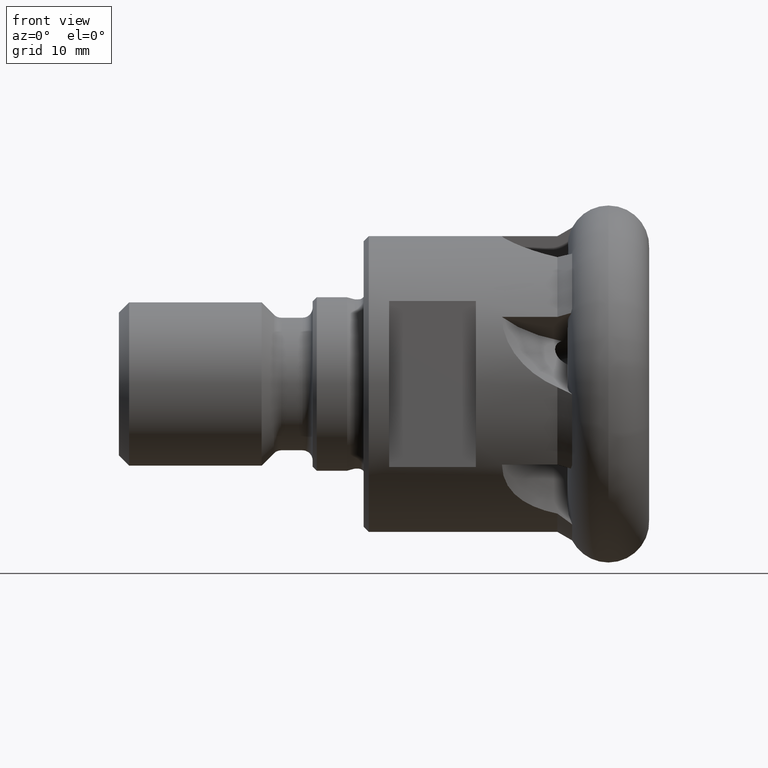
[diagram: clean part render]
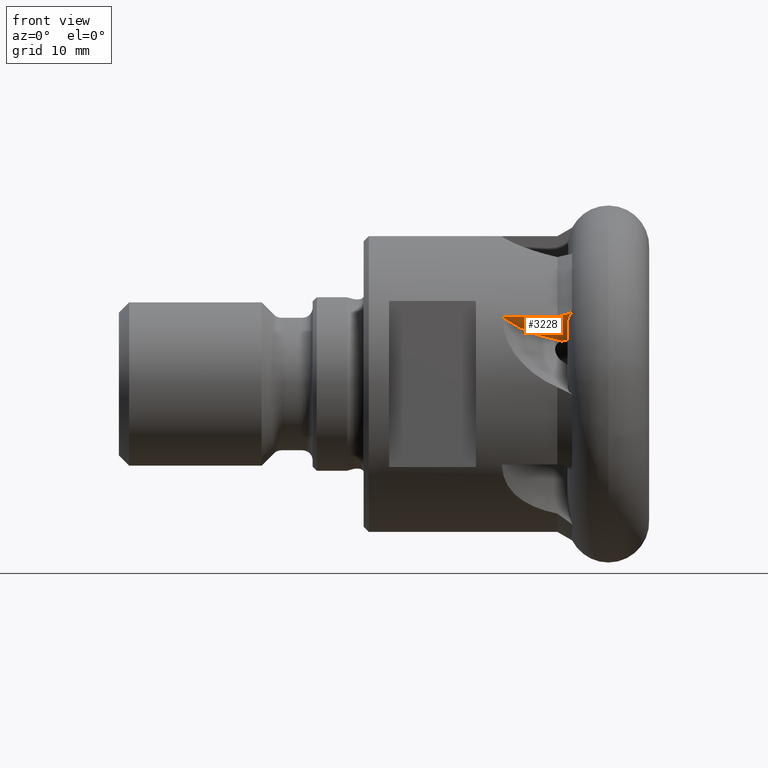
[diagram: same view with one face highlighted and labeled with its STEP entity id]
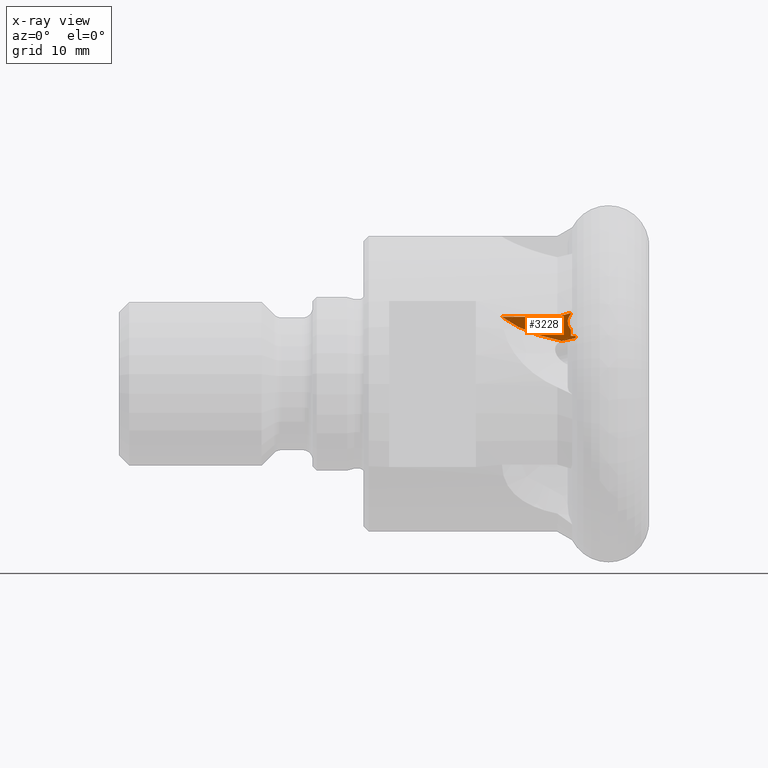
[diagram: x-ray of the same camera — body ghosted, the highlighted face saturated]
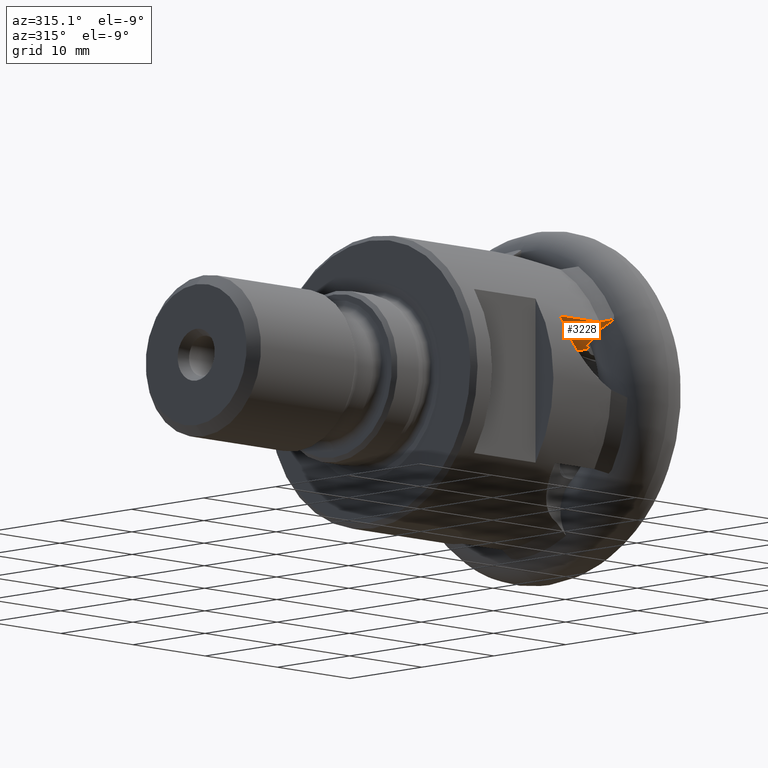
[diagram: same view with one face highlighted and labeled with its STEP entity id]
A machine part, front view. The second image highlights one B-rep face of the part: STEP entity #3228.
The next image is the same camera in x-ray: the body ghosted, the highlighted face saturated — about 0% of this face is hidden behind the body in this view.
A second angle (auxiliary view) of the same face is appended — the face is thin or edge-on in the first view.
In plain terms, the highlighted planar face has unit normal (0, 0.4962, 0.8682).
Its self-contained STEP definition (entity closure, byte-faithful):
#101 = VERTEX_POINT ( 'NONE', #1814 ) ;
#115 = CARTESIAN_POINT ( 'NONE',  ( -7.077664714744979200, -11.58530482869359300, 5.815280292771054100 ) ) ;
#249 = VECTOR ( 'NONE', #1309, 1000.000000000000000 ) ;
#416 = EDGE_LOOP ( 'NONE', ( #1455, #2642, #1391, #3298, #7350, #6049, #5179, #2275, #4529 ) ) ;
#428 = EDGE_CURVE ( 'NONE', #8034, #101, #2327, .T. ) ;
#470 = LINE ( 'NONE', #6290, #3826 ) ;
#661 = CARTESIAN_POINT ( 'NONE',  ( -6.312000000000001200, -9.642300743439967900, 4.704761967105604000 ) ) ;
#982 = VERTEX_POINT ( 'NONE', #4386 ) ;
#1079 = CARTESIAN_POINT ( 'NONE',  ( -6.645890137539253400, -9.204773901597953100, 4.454694775006692500 ) ) ;
#1309 = DIRECTION ( 'NONE',  ( -1.000000000000000000, 0.0000000000000000000, 0.0000000000000000000 ) ) ;
#1356 = CARTESIAN_POINT ( 'NONE',  ( -7.104973918217275800, -12.28642943771577700, 6.216006020937766300 ) ) ;
#1378 = B_SPLINE_CURVE_WITH_KNOTS ( 'NONE', 3,
 ( #6879, #7527, #3066, #115, #3172, #1356, #7650, #2567, #7020, #2487 ),
 .UNSPECIFIED., .F., .F.,
 ( 4, 2, 2, 2, 4 ),
 ( 0.0009457121876681753000, 0.001749714657031297700, 0.002553717126394419700, 0.003357719595757542200, 0.004161722065120664600 ),
 .UNSPECIFIED. ) ;
#1391 = ORIENTED_EDGE ( 'NONE', *, *, #2331, .T. ) ;
#1397 = CARTESIAN_POINT ( 'NONE',  ( -6.783404308883628900, -13.70344133600724700, 7.025895044168128000 ) ) ;
#1455 = ORIENTED_EDGE ( 'NONE', *, *, #4496, .T. ) ;
#1510 = AXIS2_PLACEMENT_3D ( 'NONE', #2737, #7182, #2118 ) ;
#1594 = CARTESIAN_POINT ( 'NONE',  ( -7.672490728010905600, -8.769186342276771700, 4.205735974184139400 ) ) ;
#1612 = CIRCLE ( 'NONE', #4898, 12.08948987642473400 ) ;
#1814 = CARTESIAN_POINT ( 'NONE',  ( -6.312000000000002100, -9.275178653488451300, 4.494934405886378500 ) ) ;
#1967 = EDGE_CURVE ( 'NONE', #4568, #2224, #1378, .T. ) ;
#2091 = CARTESIAN_POINT ( 'NONE',  ( -6.312000000000002100, -9.069710942337794200, 4.377499934030620200 ) ) ;
#2118 = DIRECTION ( 'NONE',  ( 0.0000000000000000000, -0.8681988144891401600, 0.4962165036752120800 ) ) ;
#2129 = CARTESIAN_POINT ( 'NONE',  ( -7.666994397232719500, -13.14326176407312600, 6.705726041427682000 ) ) ;
#2194 = VECTOR ( 'NONE', #3877, 1000.000000000000000 ) ;
#2224 = VERTEX_POINT ( 'NONE', #3467 ) ;
#2275 = ORIENTED_EDGE ( 'NONE', *, *, #6850, .F. ) ;
#2327 =( BOUNDED_CURVE ( )  B_SPLINE_CURVE ( 3, ( #3025, #2973, #1079, #5536 ),
 .UNSPECIFIED., .F., .F. ) 
 B_SPLINE_CURVE_WITH_KNOTS ( ( 4, 4 ),
 ( 5.693759523705598000, 6.009255545055557600 ),
 .UNSPECIFIED. ) 
 CURVE ( )  GEOMETRIC_REPRESENTATION_ITEM ( )  RATIONAL_B_SPLINE_CURVE ( ( 1.000000000000000000, 0.9917223750894518200, 0.9917223750894518200, 1.000000000000000000 ) ) 
 REPRESENTATION_ITEM ( '' )  );
#2331 = EDGE_CURVE ( 'NONE', #2224, #982, #470, .T. ) ;
#2405 = CARTESIAN_POINT ( 'NONE',  ( -6.783404308883629800, -9.642300743439969700, 4.704761967105604000 ) ) ;
#2487 = CARTESIAN_POINT ( 'NONE',  ( -6.783404308883628000, -13.41843757786564800, 6.863001976314154500 ) ) ;
#2545 = CARTESIAN_POINT ( 'NONE',  ( 0.0000000000000000000, -12.92155623944322000, 6.579010894572679300 ) ) ;
#2567 = CARTESIAN_POINT ( 'NONE',  ( -6.970225051594766800, -12.97712910727345700, 6.610773405317584800 ) ) ;
#2642 = ORIENTED_EDGE ( 'NONE', *, *, #1967, .T. ) ;
#2737 = CARTESIAN_POINT ( 'NONE',  ( -6.016304989521160000, -15.86872670308163800, 8.263457589034045400 ) ) ;
#2861 = EDGE_CURVE ( 'NONE', #5644, #5004, #7526, .T. ) ;
#2973 = CARTESIAN_POINT ( 'NONE',  ( -7.103172256737238400, -9.034702006505327200, 4.357490678723818800 ) ) ;
#2989 = VECTOR ( 'NONE', #3292, 1000.000000000000100 ) ;
#3016 = EDGE_CURVE ( 'NONE', #6245, #3831, #6338, .T. ) ;
#3025 = CARTESIAN_POINT ( 'NONE',  ( -7.672490728010905600, -8.769186342276771700, 4.205735974184139400 ) ) ;
#3066 = CARTESIAN_POINT ( 'NONE',  ( -6.970320713683623400, -11.12828999091050600, 5.554074793353436200 ) ) ;
#3172 = CARTESIAN_POINT ( 'NONE',  ( -7.104812254944403300, -11.81690740790411100, 5.947652072345097600 ) ) ;
#3228 = ADVANCED_FACE ( 'NONE', ( #4723 ), #5962, .F. ) ;
#3292 = DIRECTION ( 'NONE',  ( 2.727680699280051000E-016, -0.8681988144891400500, 0.4962165036752120300 ) ) ;
#3298 = ORIENTED_EDGE ( 'NONE', *, *, #8032, .T. ) ;
#3460 = LINE ( 'NONE', #2091, #7582 ) ;
#3467 = CARTESIAN_POINT ( 'NONE',  ( -6.783404308883628000, -13.41843757786564800, 6.863001976314154500 ) ) ;
#3797 = CARTESIAN_POINT ( 'NONE',  ( -8.108779725843955800, -12.92155623944322200, 6.579010894572679300 ) ) ;
#3826 = VECTOR ( 'NONE', #4298, 1000.000000000000100 ) ;
#3831 = VERTEX_POINT ( 'NONE', #2405 ) ;
#3877 = DIRECTION ( 'NONE',  ( -1.000000000000000000, 0.0000000000000000000, -0.0000000000000000000 ) ) ;
#4048 = CARTESIAN_POINT ( 'NONE',  ( -6.783404308883588000, -10.68654670429104800, 5.301597704523123500 ) ) ;
#4292 = EDGE_CURVE ( 'NONE', #5004, #8034, #1612, .T. ) ;
#4298 = DIRECTION ( 'NONE',  ( 2.727680699280051000E-016, -0.8681988144891400500, 0.4962165036752120300 ) ) ;
#4386 = CARTESIAN_POINT ( 'NONE',  ( -6.783404308883628900, -13.58664362671015800, 6.959139653608446900 ) ) ;
#4496 = EDGE_CURVE ( 'NONE', #3831, #4568, #7511, .T. ) ;
#4529 = ORIENTED_EDGE ( 'NONE', *, *, #3016, .T. ) ;
#4568 = VERTEX_POINT ( 'NONE', #4048 ) ;
#4723 = FACE_OUTER_BOUND ( 'NONE', #416, .T. ) ;
#4898 = AXIS2_PLACEMENT_3D ( 'NONE', #7035, #7612, #8257 ) ;
#5004 = VERTEX_POINT ( 'NONE', #7458 ) ;
#5179 = ORIENTED_EDGE ( 'NONE', *, *, #428, .T. ) ;
#5536 = CARTESIAN_POINT ( 'NONE',  ( -6.312000000000002100, -9.275178653488451300, 4.494934405886378500 ) ) ;
#5644 = VERTEX_POINT ( 'NONE', #3797 ) ;
#5962 = PLANE ( 'NONE',  #1510 ) ;
#5973 = CARTESIAN_POINT ( 'NONE',  ( -6.783404308883628900, -13.58664362671015800, 6.959139653608446900 ) ) ;
#6049 = ORIENTED_EDGE ( 'NONE', *, *, #4292, .T. ) ;
#6064 = CARTESIAN_POINT ( 'NONE',  ( -7.225202266112073200, -13.36495707148648600, 6.832435348662326800 ) ) ;
#6160 = B_SPLINE_CURVE_WITH_KNOTS ( 'NONE', 3,
 ( #5973, #6064, #2129, #6569 ),
 .UNSPECIFIED., .F., .F.,
 ( 4, 4 ),
 ( 0.002868509546023664200, 0.004399345624133096600 ),
 .UNSPECIFIED. ) ;
#6245 = VERTEX_POINT ( 'NONE', #8068 ) ;
#6290 = CARTESIAN_POINT ( 'NONE',  ( -6.783404308883628900, -13.70344133600724700, 7.025895044168128000 ) ) ;
#6338 = LINE ( 'NONE', #661, #2194 ) ;
#6569 = CARTESIAN_POINT ( 'NONE',  ( -8.108779725843955800, -12.92155623944322200, 6.579010894572679300 ) ) ;
#6850 = EDGE_CURVE ( 'NONE', #6245, #101, #3460, .T. ) ;
#6879 = CARTESIAN_POINT ( 'NONE',  ( -6.783404308883588000, -10.68654670429104800, 5.301597704523123500 ) ) ;
#7020 = CARTESIAN_POINT ( 'NONE',  ( -6.890005455821288600, -13.20151712067922900, 6.739021720819324400 ) ) ;
#7035 = CARTESIAN_POINT ( 'NONE',  ( -3.357489830254503100, -18.57393559356393800, 9.809611851103724700 ) ) ;
#7182 = DIRECTION ( 'NONE',  ( 0.0000000000000000000, 0.4962165036752120800, 0.8681988144891401600 ) ) ;
#7185 = DIRECTION ( 'NONE',  ( 1.626933014074885500E-016, 0.8681988144891400500, -0.4962165036752120300 ) ) ;
#7350 = ORIENTED_EDGE ( 'NONE', *, *, #2861, .T. ) ;
#7458 = CARTESIAN_POINT ( 'NONE',  ( -13.54422584180141300, -12.92155623944321800, 6.579010894572676600 ) ) ;
#7511 = LINE ( 'NONE', #1397, #2989 ) ;
#7526 = LINE ( 'NONE', #2545, #249 ) ;
#7527 = CARTESIAN_POINT ( 'NONE',  ( -6.888762001448130300, -10.90107517644086800, 5.424210827937084600 ) ) ;
#7582 = VECTOR ( 'NONE', #7185, 1000.000000000000100 ) ;
#7612 = DIRECTION ( 'NONE',  ( -0.0000000000000000000, -0.4962165036752121400, -0.8681988144891401600 ) ) ;
#7650 = CARTESIAN_POINT ( 'NONE',  ( -7.077455623647378700, -12.52118672181443800, 6.350180862902124800 ) ) ;
#8032 = EDGE_CURVE ( 'NONE', #982, #5644, #6160, .T. ) ;
#8034 = VERTEX_POINT ( 'NONE', #1594 ) ;
#8068 = CARTESIAN_POINT ( 'NONE',  ( -6.312000000000002100, -9.642300743439967900, 4.704761967105604000 ) ) ;
#8257 = DIRECTION ( 'NONE',  ( 0.0000000000000000000, 0.8681988144891400500, -0.4962165036752120800 ) ) ;